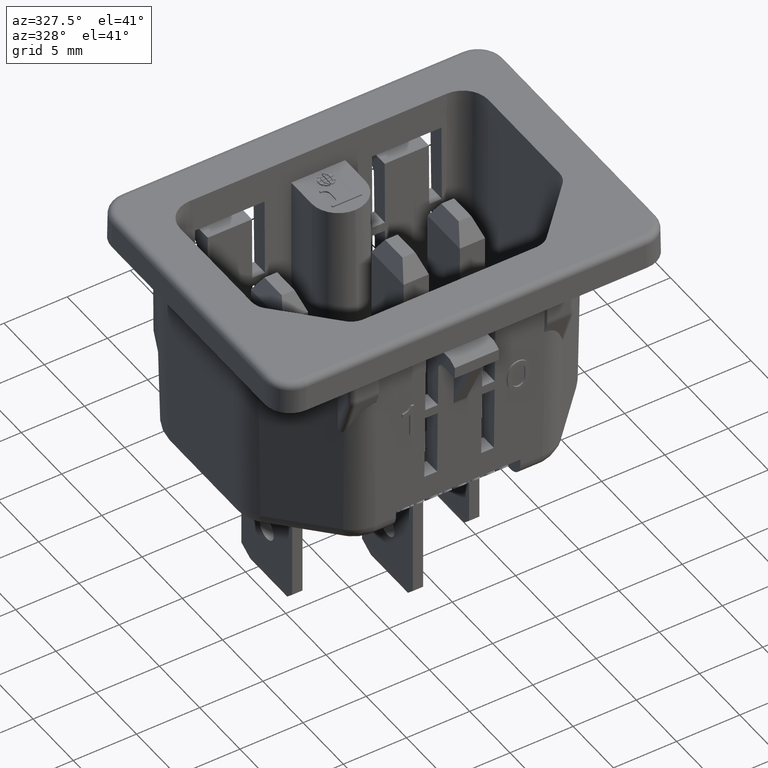
[diagram: clean part render]
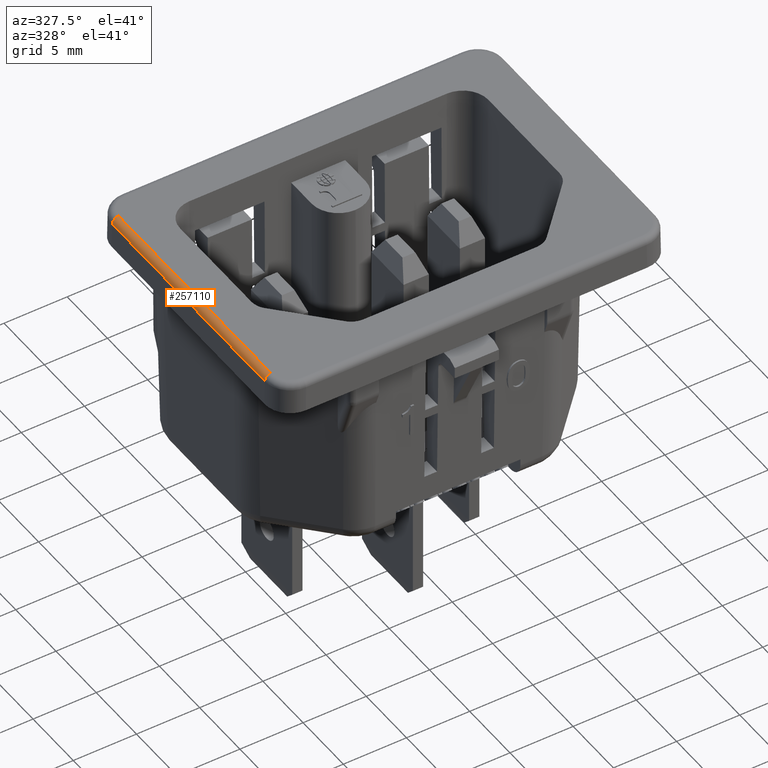
[diagram: same view with one face highlighted and labeled with its STEP entity id]
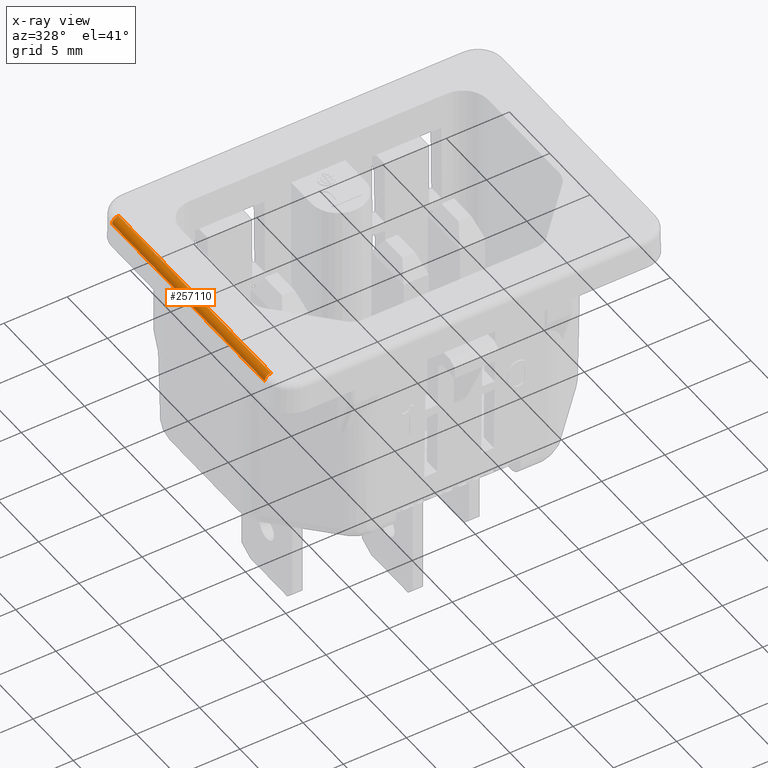
[diagram: x-ray of the same camera — body ghosted, the highlighted face saturated]
A machine part, auxiliary view. The second image highlights one B-rep face of the part: STEP entity #257110.
The next image is the same camera in x-ray: the body ghosted, the highlighted face saturated — about 0% of this face is hidden behind the body in this view.
In plain terms, the highlighted cylindrical surface (edge-blend (fillet) strip) has radius 0.5 mm, axis along (0, -1, 0).
Its self-contained STEP definition (entity closure, byte-faithful):
#59680=CARTESIAN_POINT('',(-1.57921123458707,29.47836,9.47364720629755))
;
#59690=VERTEX_POINT('',#59680);
#59720=CARTESIAN_POINT('',(-1.57908272594714,29.47836,0.));
#59730=DIRECTION('',(0.,0.,1.));
#59740=VECTOR('',#59730,1.);
#59750=LINE('',#59720,#59740);
#59760=CARTESIAN_POINT('',(-1.57921123458707,29.47836,-9.47364720629756)
);
#59770=VERTEX_POINT('',#59760);
#59780=EDGE_CURVE('',#59770,#59690,#59750,.T.);
#64730=CARTESIAN_POINT('',(-2.07916839837408,28.9849047977857,
-9.47364720629756));
#64740=VERTEX_POINT('',#64730);
#64770=CARTESIAN_POINT('',(-2.07903988973414,28.9849047977857,0.));
#64780=DIRECTION('',(0.,0.,1.));
#64790=VECTOR('',#64780,1.);
#64800=LINE('',#64770,#64790);
#64810=CARTESIAN_POINT('',(-2.07903991175249,28.9849031158037,
9.47364720629755));
#64820=VERTEX_POINT('',#64810);
#64830=EDGE_CURVE('',#64740,#64820,#64800,.T.);
#256340=CARTESIAN_POINT('',(-1.57921123458707,28.97836,-9.47364720629756
));
#256350=DIRECTION('',(0.,0.,1.));
#256360=DIRECTION('',(1.,0.,0.));
#256370=AXIS2_PLACEMENT_3D('',#256340,#256350,#256360);
#256380=CIRCLE('',#256370,0.5);
#256390=EDGE_CURVE('',#59770,#64740,#256380,.T.);
#256940=CARTESIAN_POINT('',(-1.57908272594714,28.97836,0.));
#256950=DIRECTION('',(0.,0.,1.));
#256960=DIRECTION('',(1.,0.,0.));
#256970=AXIS2_PLACEMENT_3D('',#256940,#256950,#256960);
#256980=CYLINDRICAL_SURFACE('',#256970,0.5);
#256990=CARTESIAN_POINT('',(-1.57908272594714,28.97836,9.47364720629755)
);
#257000=DIRECTION('',(0.,0.,1.));
#257010=DIRECTION('',(1.,0.,0.));
#257020=AXIS2_PLACEMENT_3D('',#256990,#257000,#257010);
#257030=CIRCLE('',#257020,0.5);
#257040=EDGE_CURVE('',#59690,#64820,#257030,.T.);
#257050=ORIENTED_EDGE('',*,*,#257040,.F.);
#257060=ORIENTED_EDGE('',*,*,#64830,.T.);
#257070=ORIENTED_EDGE('',*,*,#256390,.T.);
#257080=ORIENTED_EDGE('',*,*,#59780,.F.);
#257090=EDGE_LOOP('',(#257080,#257070,#257060,#257050));
#257100=FACE_OUTER_BOUND('',#257090,.T.);
#257110=ADVANCED_FACE('',(#257100),#256980,.T.);